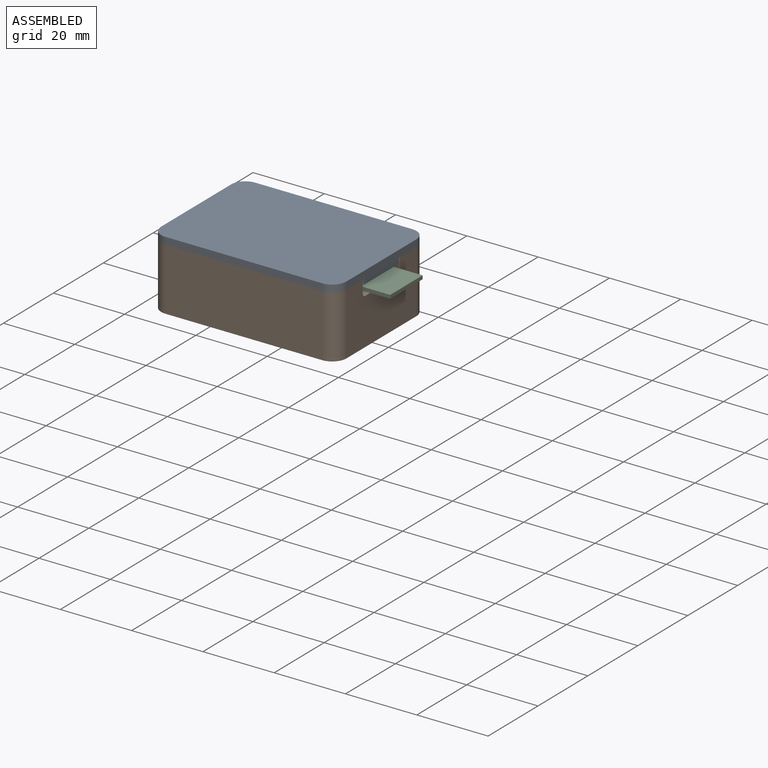
[diagram: assembled view]
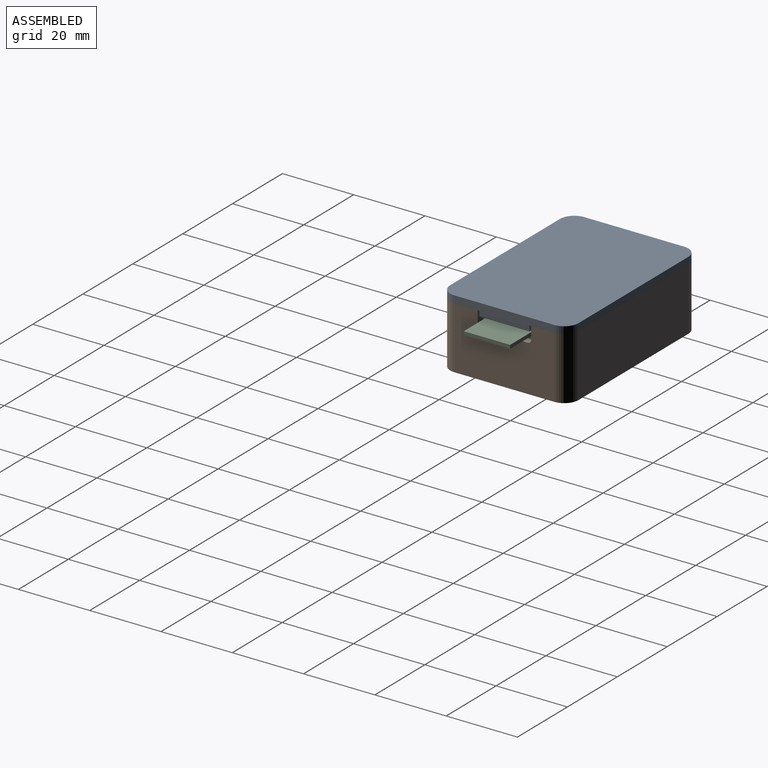
[diagram: assembled view, second angle]
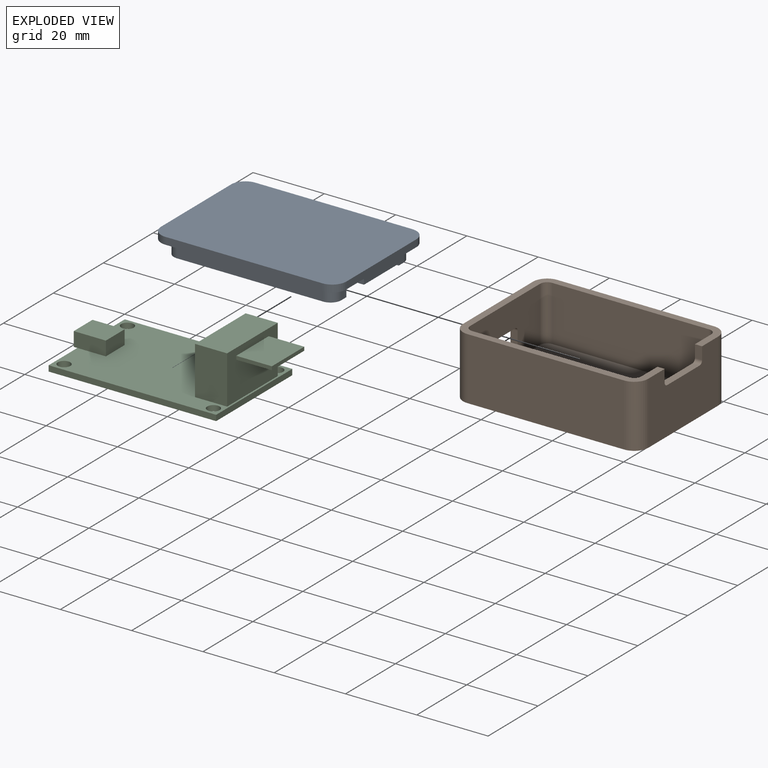
[diagram: exploded view]
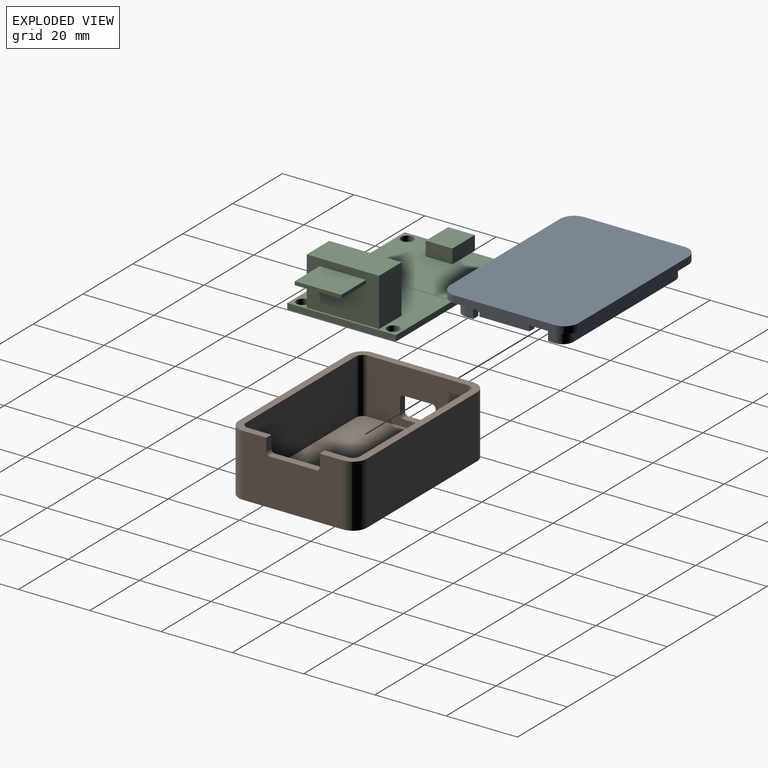
[diagram: exploded view, second angle]
ASSEMBLY  parts=3 mates=3
PART A: 35 faces, bbox 52x36x6 mm
  f0: plane 4x2mm, normal (1,0,0), area 8mm2, adj f18,f27,f28,f30
  f1: plane 4x2mm, normal (-1,0,0), area 8mm2, adj f11,f27,f28,f30
  f2: plane 28x3.5mm, normal (1,0,0), area 77mm2, adj f3,f9,f10,f28,f31,f33,f34
  f3: cylinder r=4mm len=4mm, axis (0,0,-1), area 12.6mm2, adj f2,f4,f10,f28
  f4: plane 44x2mm, normal (0,1,0), area 88mm2, adj f3,f5,f10,f28
  f5: cylinder r=4mm len=4mm, axis (0,0,-1), area 12.6mm2, adj f4,f6,f10,f28
  f6: plane 28x2mm, normal (-1,0,0), area 56mm2, adj f5,f7,f10,f28
  f7: cylinder r=4mm len=4mm, axis (0,0,-1), area 12.6mm2, adj f6,f8,f10,f28
  f8: plane 44x2mm, normal (0,-1,0), area 88mm2, adj f7,f9,f10,f28
  f9: cylinder r=4mm len=4mm, axis (0,0,-1), area 12.6mm2, adj f2,f8,f10,f28
  f10: plane 52x36mm, normal (0,0,1), area 1858.3mm2, adj f2,f3,f4,f5,f6,f7,f8,f9
  f11: cylinder r=1mm len=4mm, axis (0,0,1), area 6.3mm2, adj f1,f12,f27,f28
  f12: plane 41x4mm, normal (0,-1,0), area 164mm2, adj f11,f13,f27,f28
  f13: cylinder r=1mm len=4mm, axis (0,0,1), area 6.3mm2, adj f12,f14,f27,f28
  f14: plane 25x4mm, normal (1,0,0), area 100mm2, adj f13,f15,f27,f28
  f15: cylinder r=1mm len=4mm, axis (0,0,1), area 6.3mm2, adj f14,f16,f27,f28
  f16: plane 41x4mm, normal (0,1,0), area 164mm2, adj f15,f17,f27,f28
  f17: cylinder r=1mm len=4mm, axis (0,0,1), area 6.3mm2, adj f16,f26,f27,f28
  f18: cylinder r=3mm len=4mm, axis (0,0,1), area 18.8mm2, adj f0,f25,f27,f28
  f19: plane 4x2mm, normal (1,0,0), area 8mm2, adj f20,f27,f28,f29
  f20: cylinder r=3mm len=4mm, axis (0,0,1), area 18.8mm2, adj f19,f21,f27,f28
  f21: plane 41x4mm, normal (0,-1,0), area 164mm2, adj f20,f22,f27,f28
  f22: cylinder r=3mm len=4mm, axis (0,0,1), area 18.8mm2, adj f21,f23,f27,f28
  f23: plane 25x4mm, normal (-1,0,0), area 100mm2, adj f22,f24,f27,f28
  f24: cylinder r=3mm len=4mm, axis (0,0,1), area 18.8mm2, adj f23,f25,f27,f28
  f25: plane 41x4mm, normal (0,1,0), area 164mm2, adj f18,f24,f27,f28
  f26: plane 4x2mm, normal (-1,0,0), area 8mm2, adj f17,f27,f28,f29
  f27: plane 47x31mm, normal (0,0,-1), area 247.1mm2, adj f0,f1,f11,f12,f13,f14,f15,f16
  f28: plane 52x36mm, normal (0,0,-1), area 1583.1mm2, adj f0,f1,f2,f3,f4,f5,f6,f7
  f29: plane 4x2mm, normal (0,1,0), area 8mm2, adj f19,f26,f27,f28
  f30: plane 4x2mm, normal (0,-1,0), area 8mm2, adj f0,f1,f27,f28
  f31: plane 2x1.5mm, normal (0,-1,0), area 3mm2, adj f2,f28,f32,f34
  f32: plane 14x1.5mm, normal (-1,0,0), area 21mm2, adj f28,f31,f33,f34
  f33: plane 2x1.5mm, normal (0,1,0), area 3mm2, adj f2,f28,f32,f34
  f34: plane 14x2mm, normal (0,0,-1), area 28mm2, adj f2,f31,f32,f33
PART B: 32 faces, bbox 52x36x17.5 mm
  f0: plane 28x17.5mm, normal (-1,0,0), area 430.9mm2, adj f2,f8,f9,f10,f19,f20,f21,f22
  f1: plane 28x15.5mm, normal (1,0,0), area 374.9mm2, adj f9,f11,f17,f18,f19,f20,f21,f22
  f2: cylinder r=4mm len=17.5mm, axis (0,0,-1), area 110mm2, adj f0,f3,f9,f10
  f3: plane 44x17.5mm, normal (0,-1,0), area 770mm2, adj f2,f4,f9,f10
  f4: cylinder r=4mm len=17.5mm, axis (0,0,-1), area 110mm2, adj f3,f5,f9,f10
  f5: plane 28x17.5mm, normal (1,0,0), area 422.9mm2, adj f4,f6,f9,f10,f27,f28,f29,f30
  f6: cylinder r=4mm len=17.5mm, axis (0,0,-1), area 110mm2, adj f5,f7,f9,f10
  f7: plane 44x17.5mm, normal (0,1,0), area 770mm2, adj f6,f8,f9,f10
  f8: cylinder r=4mm len=17.5mm, axis (0,0,-1), area 110mm2, adj f0,f7,f9,f10
  f9: plane 52x36mm, normal (0,0,1), area 295.7mm2, adj f0,f1,f2,f3,f4,f5,f6,f7
  f10: plane 52x36mm, normal (0,0,-1), area 1858.3mm2, adj f0,f2,f3,f4,f5,f6,f7,f8
  f11: cylinder r=2mm len=15.5mm, axis (0,0,-1), area 48.7mm2, adj f1,f9,f12,f18
  f12: plane 44x15.5mm, normal (0,1,0), area 682mm2, adj f9,f11,f13,f18
  f13: cylinder r=2mm len=15.5mm, axis (0,0,-1), area 48.7mm2, adj f9,f12,f14,f18
  f14: plane 28x15.5mm, normal (-1,0,0), area 366.9mm2, adj f9,f13,f15,f18,f27,f28,f29,f30
  f15: cylinder r=2mm len=15.5mm, axis (0,0,-1), area 48.7mm2, adj f9,f14,f16,f18
  f16: plane 44x15.5mm, normal (0,-1,0), area 682mm2, adj f9,f15,f17,f18
  f17: cylinder r=2mm len=15.5mm, axis (0,0,-1), area 48.7mm2, adj f1,f9,f16,f18
  f18: plane 48x32mm, normal (0,0,1), area 1532.6mm2, adj f1,f11,f12,f13,f14,f15,f16,f17
  f19: plane 8x2mm, normal (0,0,-1), area 16mm2, adj f0,f1,f20,f26
  f20: cylinder r=1mm len=2mm, axis (1,0,0), area 3.1mm2, adj f0,f1,f19,f21
  f21: plane 4x2mm, normal (0,1,0), area 8mm2, adj f0,f1,f20,f22
  f22: cylinder r=1mm len=2mm, axis (1,0,0), area 3.1mm2, adj f0,f1,f21,f23
  f23: plane 8x2mm, normal (0,0,1), area 16mm2, adj f0,f1,f22,f24
  f24: cylinder r=1mm len=2mm, axis (1,0,0), area 3.1mm2, adj f0,f1,f23,f25
  f25: plane 4x2mm, normal (0,-1,0), area 8mm2, adj f0,f1,f24,f26
  f26: cylinder r=1mm len=2mm, axis (1,0,0), area 3.1mm2, adj f0,f1,f19,f25
  f27: plane 3.5x2mm, normal (0,1,0), area 7mm2, adj f5,f9,f14,f28
  f28: cylinder r=1mm len=2mm, axis (1,0,0), area 3.1mm2, adj f5,f14,f27,f29
  f29: plane 13x2mm, normal (0,0,1), area 26mm2, adj f5,f14,f28,f30
  f30: cylinder r=1mm len=2mm, axis (1,0,0), area 3.1mm2, adj f5,f14,f29,f31
  f31: plane 3.5x2mm, normal (0,-1,0), area 7mm2, adj f5,f9,f14,f30
PART C: 26 faces, bbox 57.5x30.5x15.1 mm
  f0: plane 47x30.5mm, normal (0,0,1), area 1152.3mm2, adj f2,f3,f4,f5,f6,f7,f8,f9
  f1: plane 47x30.5mm, normal (0,0,-1), area 1395mm2, adj f2,f3,f4,f5,f6,f7,f8,f9
  f2: plane 30.5x1.6mm, normal (1,0,0), area 48.8mm2, adj f0,f1,f3,f5
  f3: plane 47x1.6mm, normal (0,1,0), area 75.2mm2, adj f0,f1,f2,f4
  f4: plane 30.5x1.6mm, normal (-1,0,0), area 48.8mm2, adj f0,f1,f3,f5,f15
  f5: plane 47x1.6mm, normal (0,-1,0), area 75.2mm2, adj f0,f1,f2,f4
  f6: cylinder r=1.75mm len=3.5mm, axis (0,0,1), area 17.6mm2, adj f0,f1
  f7: cylinder r=1.75mm len=3.5mm, axis (0,0,1), area 17.6mm2, adj f0,f1
  f8: cylinder r=1.75mm len=3.5mm, axis (0,0,1), area 17.6mm2, adj f0,f1
  f9: cylinder r=1.75mm len=3.5mm, axis (0,0,1), area 17.6mm2, adj f0,f1
  f10: plane 13.5x9mm, normal (0,-1,0), area 121.5mm2, adj f0,f11,f13,f14
  f11: plane 20.3x13.5mm, normal (1,0,0), area 261.1mm2, adj f0,f10,f12,f14,f21,f22,f23,f24
  f12: plane 13.5x9mm, normal (0,1,0), area 121.5mm2, adj f0,f11,f13,f14
  f13: plane 20.3x13.5mm, normal (-1,0,0), area 274.1mm2, adj f0,f10,f12,f14
  f14: plane 20.3x9mm, normal (0,0,1), area 182.7mm2, adj f10,f11,f12,f13
  f15: plane 7.5x1mm, normal (0,0,-1), area 7.5mm2, adj f4,f16,f17,f19
  f16: plane 7.5x4mm, normal (-1,0,0), area 30mm2, adj f15,f17,f19,f20
  f17: plane 9x4mm, normal (0,-1,0), area 36mm2, adj f0,f15,f16,f18,f20
  f18: plane 7.5x4mm, normal (1,0,0), area 30mm2, adj f0,f17,f19,f20
  f19: plane 9x4mm, normal (0,1,0), area 36mm2, adj f0,f15,f16,f18,f20
  f20: plane 9x7.5mm, normal (0,0,1), area 67.5mm2, adj f16,f17,f18,f19
  f21: plane 13x10mm, normal (0,0,-1), area 130mm2, adj f11,f22,f24,f25
  f22: plane 10x1mm, normal (0,1,0), area 10mm2, adj f11,f21,f23,f25
  f23: plane 13x10mm, normal (0,0,1), area 130mm2, adj f11,f22,f24,f25
  f24: plane 10x1mm, normal (0,-1,0), area 10mm2, adj f11,f21,f23,f25
  f25: plane 13x1mm, normal (1,0,0), area 13mm2, adj f21,f22,f23,f24
PLACE A t=(12.28,11.11,16.62)mm
PLACE B t=(12.28,11.11,-1.88)mm fixed
PLACE C t=(12.28,11.11,0.92)mm
MATE planar A.f6 <-> B.f0  axis (-1,0,0) through (-13.72,11.11,16.62)mm
MATE fastened B.f18 <-> C.f1  axis (0,0,1) through (12.28,11.11,0.12)mm
MATE planar A.f28 <-> B.f9  axis (0,0,-1) through (-11.22,11.11,15.62)mm
